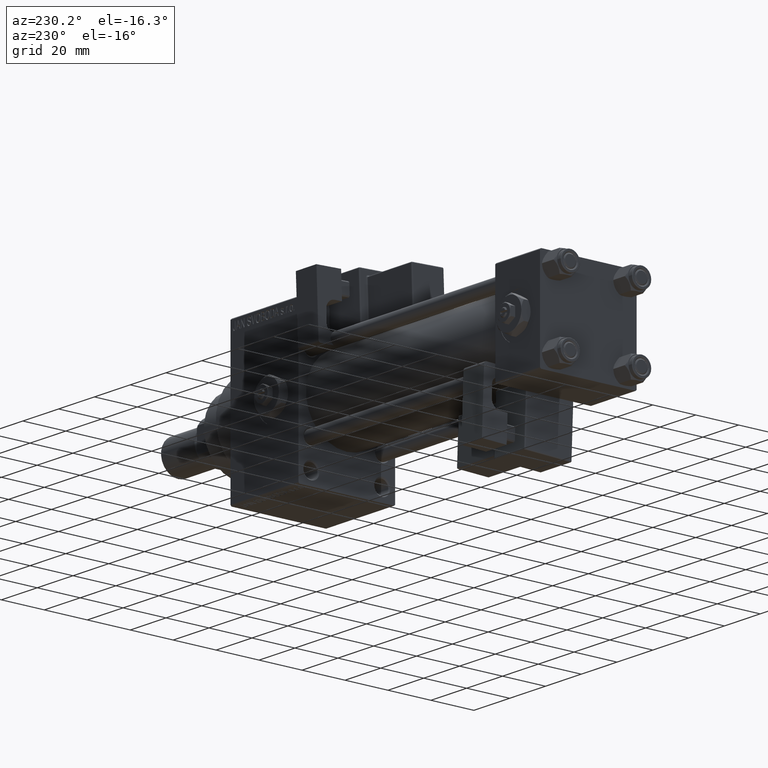
[diagram: clean part render]
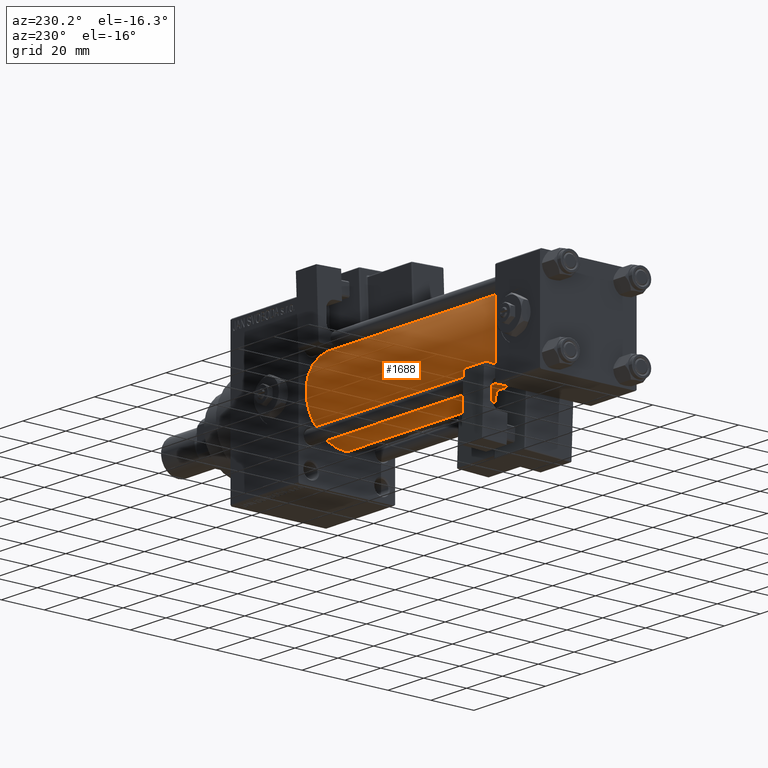
[diagram: same view with one face highlighted and labeled with its STEP entity id]
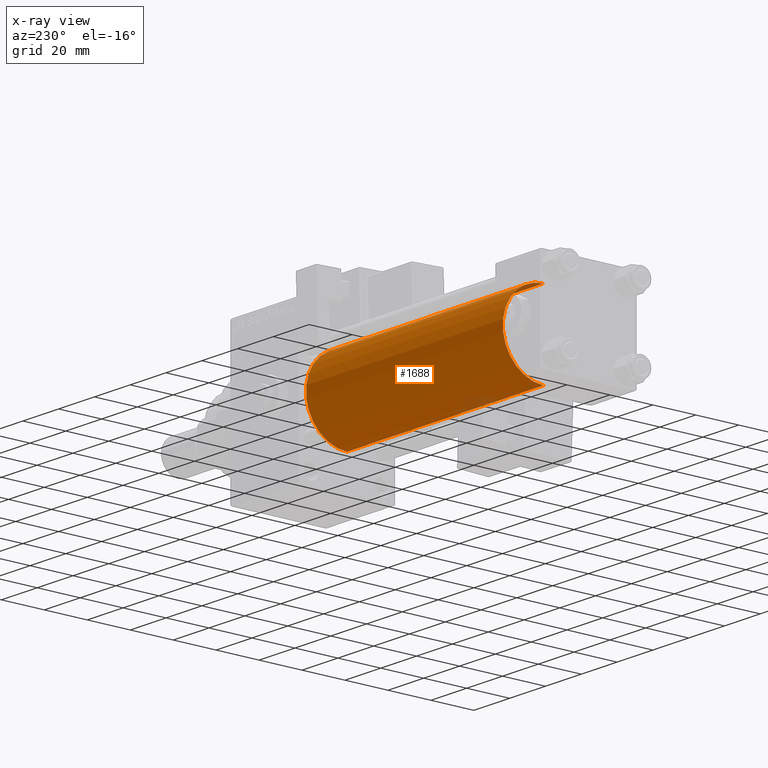
[diagram: x-ray of the same camera — body ghosted, the highlighted face saturated]
A machine part, auxiliary view. The second image highlights one B-rep face of the part: STEP entity #1688.
The next image is the same camera in x-ray: the body ghosted, the highlighted face saturated — about 2% of this face is hidden behind the body in this view.
In plain terms, the highlighted cylindrical surface (partial cylindrical patch) has radius 19 mm, axis along (-1, -0, -0).
Its self-contained STEP definition (entity closure, byte-faithful):
#279 = DIRECTION ( 'NONE',  ( 0.000000000000000000, 0.000000000000000000, 1.000000000000000000 ) ) ;
#548 = CARTESIAN_POINT ( 'NONE',  ( 24.99999999999999289, -2.602085213965210642E-15, 0.000000000000000000 ) ) ;
#879 = LINE ( 'NONE', #48905, #4741 ) ;
#1688 = ADVANCED_FACE ( 'NONE', ( #11134 ), #39217, .T. ) ;
#3755 = DIRECTION ( 'NONE',  ( 0.000000000000000000, 0.000000000000000000, 1.000000000000000000 ) ) ;
#3778 = DIRECTION ( 'NONE',  ( 0.000000000000000000, 0.000000000000000000, -1.000000000000000000 ) ) ;
#3887 = EDGE_CURVE ( 'NONE', #38132, #22933, #8083, .T. ) ;
#4537 = EDGE_CURVE ( 'NONE', #17773, #22933, #879, .T. ) ;
#4741 = VECTOR ( 'NONE', #24791, 1000.000000000000000 ) ;
#4824 = CARTESIAN_POINT ( 'NONE',  ( 135.0000000000000000, -2.602085213965210642E-15, 0.000000000000000000 ) ) ;
#8042 = CARTESIAN_POINT ( 'NONE',  ( 135.0000000000000000, -2.602085213965210642E-15, 19.00000000000000000 ) ) ;
#8083 = CIRCLE ( 'NONE', #10610, 19.00000000000000000 ) ;
#9473 = CIRCLE ( 'NONE', #25397, 19.00000000000000000 ) ;
#9802 = ORIENTED_EDGE ( 'NONE', *, *, #45720, .T. ) ;
#10146 = DIRECTION ( 'NONE',  ( -1.000000000000000000, -0.000000000000000000, -0.000000000000000000 ) ) ;
#10610 = AXIS2_PLACEMENT_3D ( 'NONE', #548, #21026, #279 ) ;
#11134 = FACE_OUTER_BOUND ( 'NONE', #49759, .T. ) ;
#12454 = DIRECTION ( 'NONE',  ( 1.000000000000000000, 0.000000000000000000, 0.000000000000000000 ) ) ;
#14995 = CARTESIAN_POINT ( 'NONE',  ( 24.99999999999999289, -2.752562955852396712E-16, -19.00000000000000000 ) ) ;
#15510 = VERTEX_POINT ( 'NONE', #29371 ) ;
#17773 = VERTEX_POINT ( 'NONE', #8042 ) ;
#19401 = EDGE_CURVE ( 'NONE', #15510, #17773, #9473, .T. ) ;
#21026 = DIRECTION ( 'NONE',  ( 1.000000000000000000, -0.000000000000000000, 0.000000000000000000 ) ) ;
#21282 = ORIENTED_EDGE ( 'NONE', *, *, #19401, .F. ) ;
#22933 = VERTEX_POINT ( 'NONE', #48031 ) ;
#24791 = DIRECTION ( 'NONE',  ( -1.000000000000000000, -0.000000000000000000, -0.000000000000000000 ) ) ;
#24962 = DIRECTION ( 'NONE',  ( -1.000000000000000000, -0.000000000000000000, -0.000000000000000000 ) ) ;
#25397 = AXIS2_PLACEMENT_3D ( 'NONE', #4824, #12454, #3778 ) ;
#29371 = CARTESIAN_POINT ( 'NONE',  ( 135.0000000000000000, -2.752562955852396712E-16, -19.00000000000000000 ) ) ;
#30776 = ORIENTED_EDGE ( 'NONE', *, *, #4537, .F. ) ;
#34796 = CARTESIAN_POINT ( 'NONE',  ( 135.0000000000000000, -2.752562955852396712E-16, -19.00000000000000000 ) ) ;
#35791 = CARTESIAN_POINT ( 'NONE',  ( 135.0000000000000000, -2.602085213965210642E-15, 0.000000000000000000 ) ) ;
#38132 = VERTEX_POINT ( 'NONE', #14995 ) ;
#39217 = CYLINDRICAL_SURFACE ( 'NONE', #42358, 19.00000000000000000 ) ;
#42303 = VECTOR ( 'NONE', #10146, 1000.000000000000000 ) ;
#42358 = AXIS2_PLACEMENT_3D ( 'NONE', #35791, #24962, #3755 ) ;
#45720 = EDGE_CURVE ( 'NONE', #15510, #38132, #50531, .T. ) ;
#48031 = CARTESIAN_POINT ( 'NONE',  ( 24.99999999999999289, -2.602085213965210642E-15, 19.00000000000000000 ) ) ;
#48905 = CARTESIAN_POINT ( 'NONE',  ( 135.0000000000000000, -2.602085213965210642E-15, 19.00000000000000000 ) ) ;
#49759 = EDGE_LOOP ( 'NONE', ( #21282, #9802, #51761, #30776 ) ) ;
#50531 = LINE ( 'NONE', #34796, #42303 ) ;
#51761 = ORIENTED_EDGE ( 'NONE', *, *, #3887, .T. ) ;